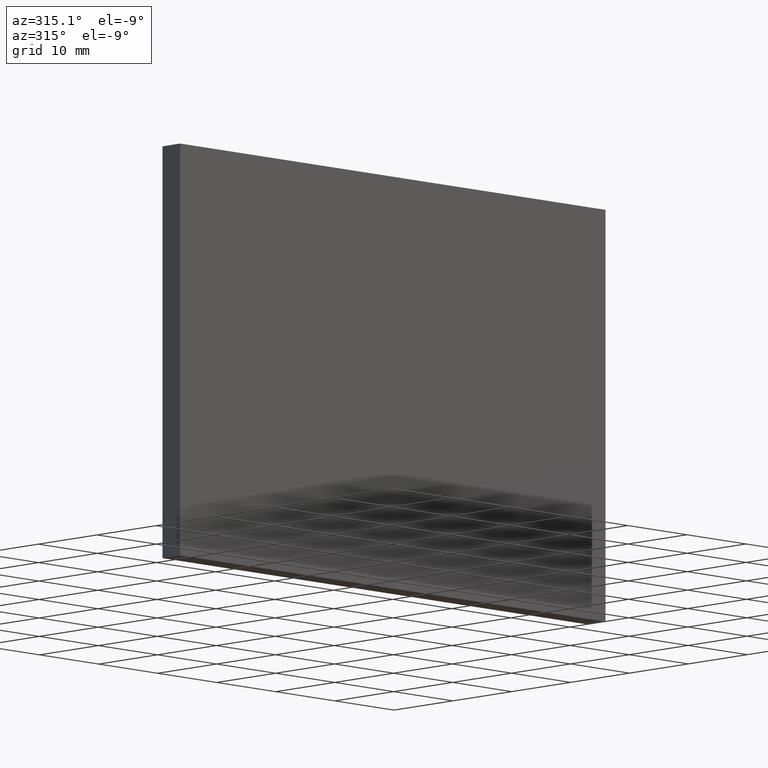
[diagram: clean part render]
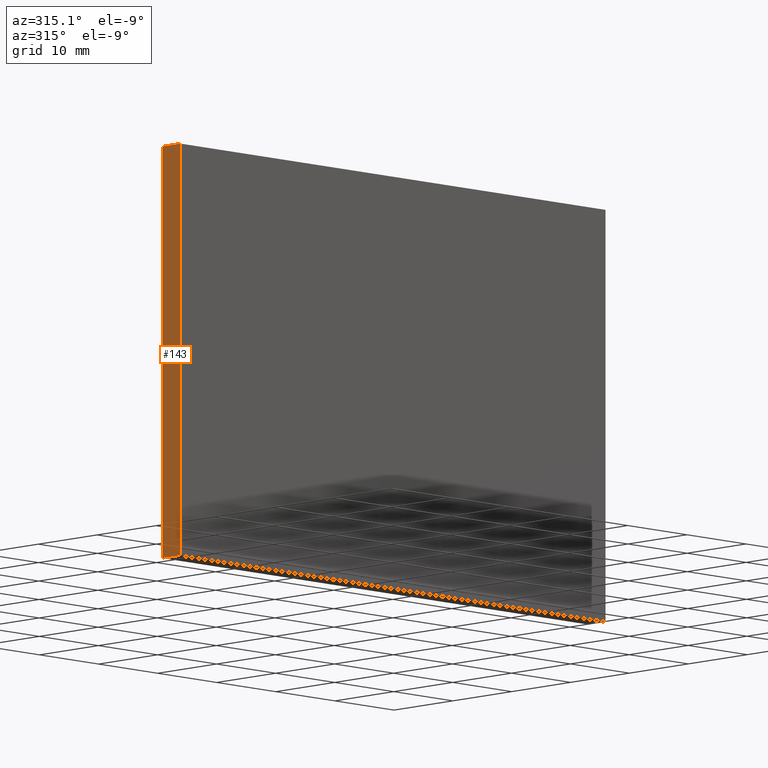
[diagram: same view with one face highlighted and labeled with its STEP entity id]
A machine part, auxiliary view. The second image highlights one B-rep face of the part: STEP entity #143.
In plain terms, the highlighted planar face has unit normal (1, 0, -0).
Its self-contained STEP definition (entity closure, byte-faithful):
#5 = EDGE_LOOP ( 'NONE', ( #29, #180, #188, #31 ) ) ;
#6 = DIRECTION ( 'NONE',  ( -1.387778780781445400E-016, 0.0000000000000000000, -1.000000000000000000 ) ) ;
#12 = EDGE_CURVE ( 'NONE', #72, #187, #98, .T. ) ;
#14 = CARTESIAN_POINT ( 'NONE',  ( -36.00000000000000700, 3.000000000000000000, -25.00000000000000000 ) ) ;
#21 = VECTOR ( 'NONE', #149, 1000.000000000000000 ) ;
#29 = ORIENTED_EDGE ( 'NONE', *, *, #12, .T. ) ;
#31 = ORIENTED_EDGE ( 'NONE', *, *, #186, .T. ) ;
#38 = VECTOR ( 'NONE', #194, 1000.000000000000000 ) ;
#39 = VECTOR ( 'NONE', #95, 1000.000000000000000 ) ;
#46 = LINE ( 'NONE', #14, #38 ) ;
#53 = VERTEX_POINT ( 'NONE', #145 ) ;
#54 = CARTESIAN_POINT ( 'NONE',  ( -36.00000000000000700, 3.000000000000000000, -25.00000000000000000 ) ) ;
#61 = LINE ( 'NONE', #134, #39 ) ;
#62 = VECTOR ( 'NONE', #74, 1000.000000000000000 ) ;
#70 = CARTESIAN_POINT ( 'NONE',  ( -36.00000000000000700, 3.000000000000000000, -25.00000000000000000 ) ) ;
#72 = VERTEX_POINT ( 'NONE', #137 ) ;
#74 = DIRECTION ( 'NONE',  ( -0.0000000000000000000, -1.000000000000000000, -0.0000000000000000000 ) ) ;
#75 = CARTESIAN_POINT ( 'NONE',  ( -36.00000000000000000, 0.0000000000000000000, 25.00000000000000000 ) ) ;
#80 = CARTESIAN_POINT ( 'NONE',  ( -36.00000000000000700, 3.000000000000000000, -25.00000000000000000 ) ) ;
#86 = LINE ( 'NONE', #70, #62 ) ;
#88 = FACE_OUTER_BOUND ( 'NONE', #5, .T. ) ;
#94 = DIRECTION ( 'NONE',  ( 1.000000000000000000, 0.0000000000000000000, -1.387778780781445400E-016 ) ) ;
#95 = DIRECTION ( 'NONE',  ( -0.0000000000000000000, -1.000000000000000000, -0.0000000000000000000 ) ) ;
#98 = LINE ( 'NONE', #146, #21 ) ;
#125 = EDGE_CURVE ( 'NONE', #175, #53, #46, .T. ) ;
#134 = CARTESIAN_POINT ( 'NONE',  ( -36.00000000000000000, 3.000000000000000000, 25.00000000000000000 ) ) ;
#136 = PLANE ( 'NONE',  #166 ) ;
#137 = CARTESIAN_POINT ( 'NONE',  ( -36.00000000000000700, 0.0000000000000000000, -25.00000000000000000 ) ) ;
#143 = ADVANCED_FACE ( 'NONE', ( #88 ), #136, .F. ) ;
#145 = CARTESIAN_POINT ( 'NONE',  ( -36.00000000000000000, 3.000000000000000000, 25.00000000000000000 ) ) ;
#146 = CARTESIAN_POINT ( 'NONE',  ( -36.00000000000000700, 0.0000000000000000000, -25.00000000000000000 ) ) ;
#149 = DIRECTION ( 'NONE',  ( 1.387778780781445700E-016, 0.0000000000000000000, 1.000000000000000000 ) ) ;
#166 = AXIS2_PLACEMENT_3D ( 'NONE', #54, #94, #6 ) ;
#170 = EDGE_CURVE ( 'NONE', #53, #187, #61, .T. ) ;
#175 = VERTEX_POINT ( 'NONE', #80 ) ;
#180 = ORIENTED_EDGE ( 'NONE', *, *, #170, .F. ) ;
#186 = EDGE_CURVE ( 'NONE', #175, #72, #86, .T. ) ;
#187 = VERTEX_POINT ( 'NONE', #75 ) ;
#188 = ORIENTED_EDGE ( 'NONE', *, *, #125, .F. ) ;
#194 = DIRECTION ( 'NONE',  ( 1.387778780781445700E-016, 0.0000000000000000000, 1.000000000000000000 ) ) ;